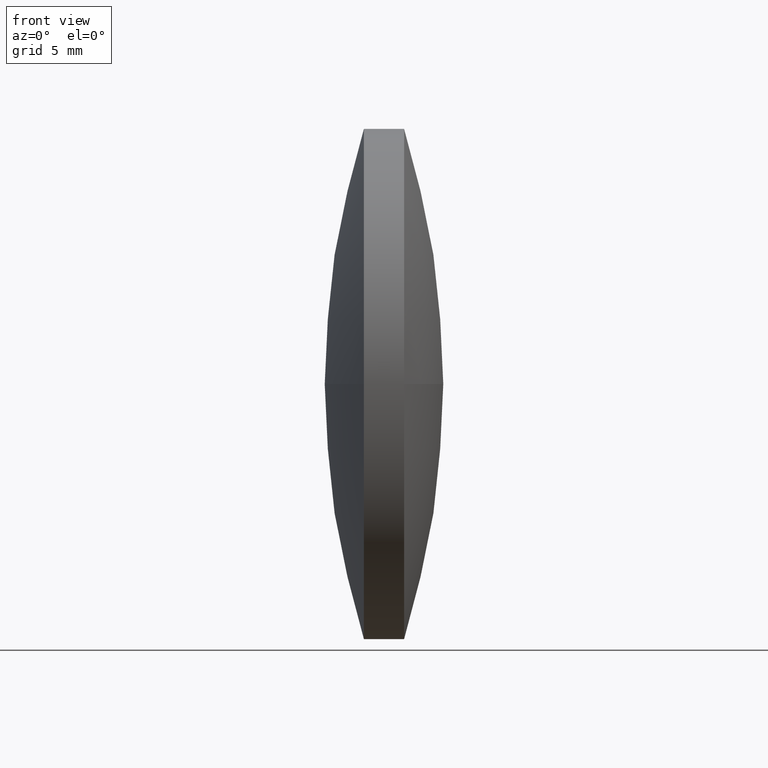
[diagram: clean part render]
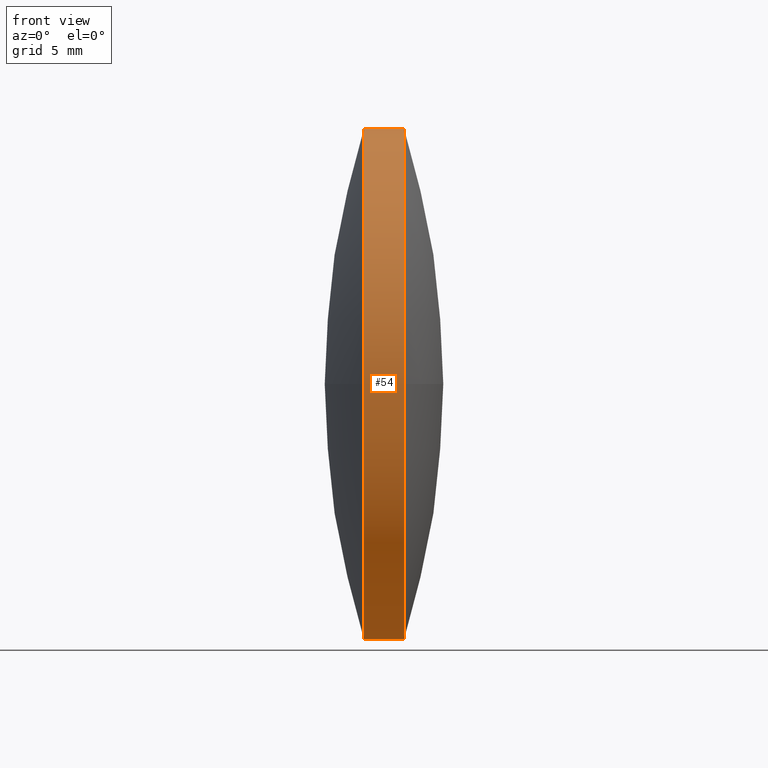
[diagram: same view with one face highlighted and labeled with its STEP entity id]
A machine part, front view. The second image highlights one B-rep face of the part: STEP entity #54.
In plain terms, the highlighted cylindrical surface (partial cylindrical patch) has radius 12.7 mm, axis along (-1, -0, -0).
Its self-contained STEP definition (entity closure, byte-faithful):
#6 = VERTEX_POINT ( 'NONE', #331 ) ;
#14 = CARTESIAN_POINT ( 'NONE',  ( 85.45852234609111500, 35.91611302318477100, -1.555301434917135700E-015 ) ) ;
#17 = DIRECTION ( 'NONE',  ( 0.0000000000000000000, 0.0000000000000000000, 1.000000000000000000 ) ) ;
#20 = DIRECTION ( 'NONE',  ( -1.000000000000000000, -0.0000000000000000000, -0.0000000000000000000 ) ) ;
#37 = AXIS2_PLACEMENT_3D ( 'NONE', #197, #43, #317 ) ;
#39 = CARTESIAN_POINT ( 'NONE',  ( 79.30540135083715800, 48.61611302318478100, 0.0000000000000000000 ) ) ;
#41 = CARTESIAN_POINT ( 'NONE',  ( 85.45852234609111500, 48.61611302318478100, 0.0000000000000000000 ) ) ;
#43 = DIRECTION ( 'NONE',  ( -1.000000000000000000, -0.0000000000000000000, -0.0000000000000000000 ) ) ;
#48 = CIRCLE ( 'NONE', #223, 12.69999999999999600 ) ;
#50 = VERTEX_POINT ( 'NONE', #161 ) ;
#54 = ADVANCED_FACE ( 'NONE', ( #126 ), #308, .T. ) ;
#57 = EDGE_LOOP ( 'NONE', ( #93, #127, #115, #148, #237, #267 ) ) ;
#65 = VERTEX_POINT ( 'NONE', #246 ) ;
#74 = VERTEX_POINT ( 'NONE', #14 ) ;
#92 = CARTESIAN_POINT ( 'NONE',  ( 85.45852234609111500, 48.61611302318478100, 12.69999999999999600 ) ) ;
#93 = ORIENTED_EDGE ( 'NONE', *, *, #286, .F. ) ;
#115 = ORIENTED_EDGE ( 'NONE', *, *, #219, .T. ) ;
#116 = CARTESIAN_POINT ( 'NONE',  ( 85.45852234609111500, 48.61611302318478100, -12.69999999999999600 ) ) ;
#126 = FACE_OUTER_BOUND ( 'NONE', #57, .T. ) ;
#127 = ORIENTED_EDGE ( 'NONE', *, *, #204, .T. ) ;
#146 = DIRECTION ( 'NONE',  ( -1.000000000000000000, -0.0000000000000000000, -0.0000000000000000000 ) ) ;
#148 = ORIENTED_EDGE ( 'NONE', *, *, #184, .T. ) ;
#159 = VECTOR ( 'NONE', #20, 1000.000000000000000 ) ;
#161 = CARTESIAN_POINT ( 'NONE',  ( 87.45786520323396500, 35.91611302318478500, -1.555301434917138400E-015 ) ) ;
#166 = EDGE_CURVE ( 'NONE', #193, #74, #288, .T. ) ;
#184 = EDGE_CURVE ( 'NONE', #65, #187, #247, .T. ) ;
#186 = VECTOR ( 'NONE', #310, 1000.000000000000000 ) ;
#187 = VERTEX_POINT ( 'NONE', #92 ) ;
#193 = VERTEX_POINT ( 'NONE', #116 ) ;
#197 = CARTESIAN_POINT ( 'NONE',  ( 87.45786520323396500, 48.61611302318478100, 0.0000000000000000000 ) ) ;
#204 = EDGE_CURVE ( 'NONE', #6, #50, #231, .T. ) ;
#219 = EDGE_CURVE ( 'NONE', #50, #65, #281, .T. ) ;
#223 = AXIS2_PLACEMENT_3D ( 'NONE', #274, #295, #296 ) ;
#231 = CIRCLE ( 'NONE', #37, 12.69999999999999600 ) ;
#237 = ORIENTED_EDGE ( 'NONE', *, *, #337, .F. ) ;
#246 = CARTESIAN_POINT ( 'NONE',  ( 87.45786520323396500, 48.61611302318478100, 12.69999999999999600 ) ) ;
#247 = LINE ( 'NONE', #333, #159 ) ;
#248 = DIRECTION ( 'NONE',  ( 0.0000000000000000000, 0.0000000000000000000, 1.000000000000000000 ) ) ;
#266 = AXIS2_PLACEMENT_3D ( 'NONE', #268, #323, #248 ) ;
#267 = ORIENTED_EDGE ( 'NONE', *, *, #166, .F. ) ;
#268 = CARTESIAN_POINT ( 'NONE',  ( 87.45786520323396500, 48.61611302318478100, 0.0000000000000000000 ) ) ;
#273 = DIRECTION ( 'NONE',  ( -1.000000000000000000, -0.0000000000000000000, -0.0000000000000000000 ) ) ;
#274 = CARTESIAN_POINT ( 'NONE',  ( 85.45852234609111500, 48.61611302318478100, 0.0000000000000000000 ) ) ;
#281 = CIRCLE ( 'NONE', #266, 12.69999999999999600 ) ;
#282 = CARTESIAN_POINT ( 'NONE',  ( 79.30540135083715800, 48.61611302318478100, -12.69999999999999600 ) ) ;
#286 = EDGE_CURVE ( 'NONE', #6, #193, #343, .T. ) ;
#288 = CIRCLE ( 'NONE', #292, 12.69999999999999600 ) ;
#292 = AXIS2_PLACEMENT_3D ( 'NONE', #41, #146, #17 ) ;
#295 = DIRECTION ( 'NONE',  ( -1.000000000000000000, -0.0000000000000000000, -0.0000000000000000000 ) ) ;
#296 = DIRECTION ( 'NONE',  ( 0.0000000000000000000, 0.0000000000000000000, 1.000000000000000000 ) ) ;
#301 = DIRECTION ( 'NONE',  ( 0.0000000000000000000, 0.0000000000000000000, 1.000000000000000000 ) ) ;
#308 = CYLINDRICAL_SURFACE ( 'NONE', #328, 12.69999999999999600 ) ;
#310 = DIRECTION ( 'NONE',  ( -1.000000000000000000, -0.0000000000000000000, -0.0000000000000000000 ) ) ;
#317 = DIRECTION ( 'NONE',  ( 0.0000000000000000000, 0.0000000000000000000, 1.000000000000000000 ) ) ;
#323 = DIRECTION ( 'NONE',  ( -1.000000000000000000, -0.0000000000000000000, -0.0000000000000000000 ) ) ;
#328 = AXIS2_PLACEMENT_3D ( 'NONE', #39, #273, #301 ) ;
#331 = CARTESIAN_POINT ( 'NONE',  ( 87.45786520323396500, 48.61611302318478100, -12.69999999999999600 ) ) ;
#333 = CARTESIAN_POINT ( 'NONE',  ( 79.30540135083715800, 48.61611302318478100, 12.69999999999999600 ) ) ;
#337 = EDGE_CURVE ( 'NONE', #74, #187, #48, .T. ) ;
#343 = LINE ( 'NONE', #282, #186 ) ;